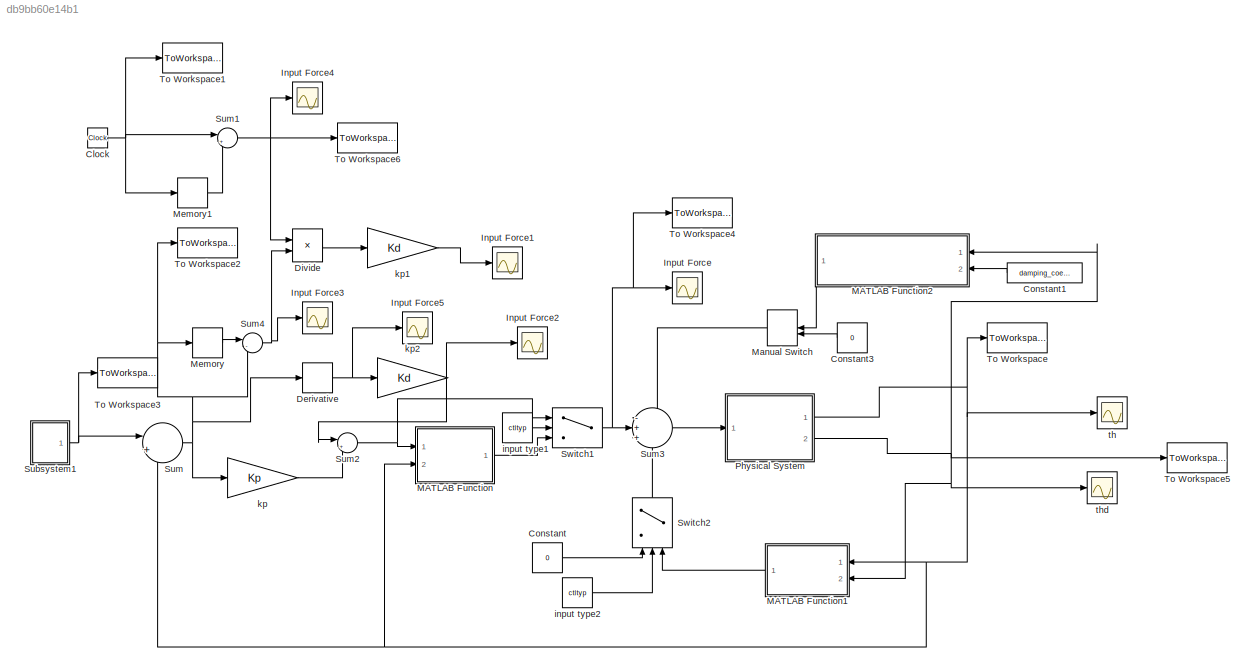
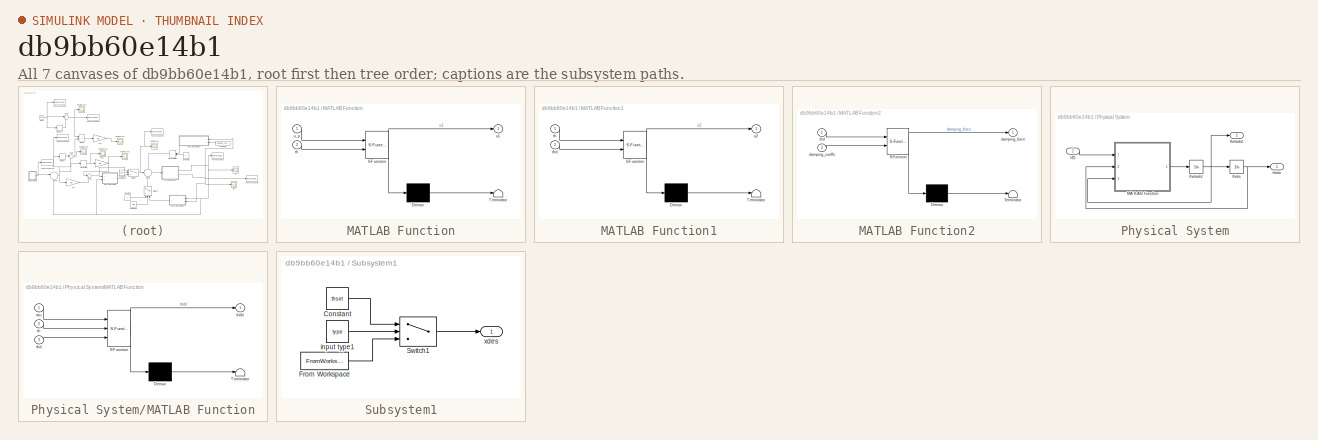
[diagram: thumbnail index - all 7 canvases of the model, root first then tree order]
MODEL slx_db9bb60e14b1
KIND model
CONFIG AbsTol = tol
CONFIG EnableMultiTasking = on
CONFIG FixedStep = maxstep
CONFIG MaxStep = maxstep
CONFIG MinStep = minstep
CONFIG RelTol = tol
CONFIG SampleTimeConstraint = Unconstrained
CONFIG Solver = FixedStepAuto
CONFIG SolverName = FixedStepAuto
CONFIG StartTime = 0.0
CONFIG StopTime = tf
BLOCK [Clock] Clock
  Decimation = 1
BLOCK [Constant] Constant
  Value = 0
BLOCK [Constant] Constant1
  Value = damping_coeffs
BLOCK [Constant] Constant3
  Value = 0
BLOCK [Derivative] Derivative
  CoefficientInTFapproximation = 0
BLOCK [Product] Divide
  InputSameDT = off
  Inputs = /*
  OutDataTypeStr = Inherit: Inherit via internal rule
  Ports = [2, 1]
  RndMeth = Floor
  SaturateOnIntegerOverflow = off
BLOCK [Scope] Input Force
  NumInputPorts = 1
  Ports = [1]
  ScopeSpecificationString = Simulink.scopes.TimeScopeBlockCfg('CurrentConfiguration', extmgr.ConfigurationSet(extmgr.Configuration('Core','General UI',true),extmgr.Configuration('Core','Source UI',true),extmgr.Configuration('Sources','WiredSimulink',true,'DataLoggingVariableName','ScopeData2','DataLoggingSaveFormat','Array','DataLoggingDecimation','1','DataLoggingDecimateData',true),extmgr.Configuration('Visuals','Time Domai...<+1716ch>
BLOCK [Scope] Input Force1
  NumInputPorts = 1
  Ports = [1]
  ScopeSpecificationString = Simulink.scopes.TimeScopeBlockCfg('CurrentConfiguration', extmgr.ConfigurationSet(extmgr.Configuration('Core','General UI',true),extmgr.Configuration('Core','Source UI',true),extmgr.Configuration('Sources','WiredSimulink',true,'DataLoggingVariableName','ScopeData1','DataLoggingSaveFormat','Array','DataLoggingDecimation','1','DataLoggingDecimateData',true),extmgr.Configuration('Visuals','Time Domai...<+1652ch>
BLOCK [Scope] Input Force2
  NumInputPorts = 1
  Ports = [1]
  ScopeSpecificationString = Simulink.scopes.TimeScopeBlockCfg('CurrentConfiguration', extmgr.ConfigurationSet(extmgr.Configuration('Core','General UI',true),extmgr.Configuration('Core','Source UI',true),extmgr.Configuration('Sources','WiredSimulink',true,'DataLoggingVariableName','ScopeData2','DataLoggingSaveFormat','Array','DataLoggingDecimation','1','DataLoggingDecimateData',true),extmgr.Configuration('Visuals','Time Domai...<+1653ch>
BLOCK [Scope] Input Force3
  NumInputPorts = 1
  Ports = [1]
  ScopeSpecificationString = Simulink.scopes.TimeScopeBlockCfg('CurrentConfiguration', extmgr.ConfigurationSet(extmgr.Configuration('Core','General UI',true),extmgr.Configuration('Core','Source UI',true),extmgr.Configuration('Sources','WiredSimulink',true,'DataLoggingVariableName','ScopeData3','DataLoggingSaveFormat','Array','DataLoggingDecimation','1','DataLoggingDecimateData',true),extmgr.Configuration('Visuals','Time Domai...<+1651ch>
BLOCK [Scope] Input Force4
  NumInputPorts = 1
  Ports = [1]
  ScopeSpecificationString = Simulink.scopes.TimeScopeBlockCfg('CurrentConfiguration', extmgr.ConfigurationSet(extmgr.Configuration('Core','General UI',true),extmgr.Configuration('Core','Source UI',true),extmgr.Configuration('Sources','WiredSimulink',true,'DataLoggingVariableName','ScopeData4','DataLoggingSaveFormat','Array','DataLoggingDecimation','1','DataLoggingDecimateData',true),extmgr.Configuration('Visuals','Time Domai...<+1655ch>
BLOCK [Scope] Input Force5
  NumInputPorts = 1
  Ports = [1]
  ScopeSpecificationString = Simulink.scopes.TimeScopeBlockCfg('CurrentConfiguration', extmgr.ConfigurationSet(extmgr.Configuration('Core','General UI',true),extmgr.Configuration('Core','Source UI',true),extmgr.Configuration('Sources','WiredSimulink',true,'DataLoggingVariableName','ScopeData1','DataLoggingSaveFormat','Array','DataLoggingDecimation','1','DataLoggingDecimateData',true),extmgr.Configuration('Visuals','Time Domai...<+1653ch>
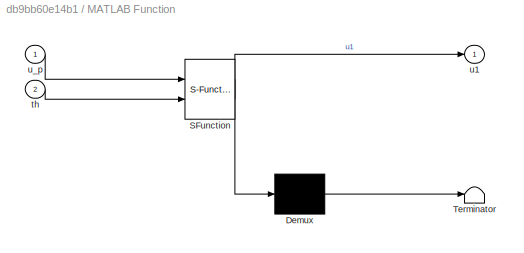
BLOCK [SubSystem] MATLAB Function
  ErrorFcn = Stateflow.Translate.translate
  PermitHierarchicalResolution = ExplicitOnly
  Ports = [2, 1]
  RequestExecContextInheritance = off
  SFBlockType = MATLAB Function
  TreatAsAtomicUnit = on
  Variant = off
BLOCK [Demux] MATLAB Function/ Demux 
  Outputs = 1
  Ports = [1, 1]
BLOCK [S-Function] MATLAB Function/ SFunction 
  EnableBusSupport = on
  FunctionName = sf_sfun
  PortCounts = [2 2]
  Ports = [2, 2]
  SFcnIsStateOwnerBlock = off
  SFunctionDeploymentMode = off
  Tag = Stateflow S-Function PD_simulink_model 1
BLOCK [Terminator] MATLAB Function/ Terminator 
BLOCK [Inport] MATLAB Function/th
  IconDisplay = Port number
  Port = 2
BLOCK [Outport] MATLAB Function/u1
  IconDisplay = Port number
BLOCK [Inport] MATLAB Function/u_p
  IconDisplay = Port number
BLOCK [SubSystem] MATLAB Function1
  ErrorFcn = Stateflow.Translate.translate
  PermitHierarchicalResolution = ExplicitOnly
  Ports = [2, 1]
  RequestExecContextInheritance = off
  SFBlockType = MATLAB Function
  TreatAsAtomicUnit = on
  Variant = off
BLOCK [Demux] MATLAB Function1/ Demux 
  Outputs = 1
  Ports = [1, 1]
BLOCK [S-Function] MATLAB Function1/ SFunction 
  EnableBusSupport = on
  FunctionName = sf_sfun
  PortCounts = [2 2]
  Ports = [2, 2]
  SFcnIsStateOwnerBlock = off
  SFunctionDeploymentMode = off
  Tag = Stateflow S-Function PD_simulink_model 3
BLOCK [Terminator] MATLAB Function1/ Terminator 
BLOCK [Inport] MATLAB Function1/th
  IconDisplay = Port number
BLOCK [Inport] MATLAB Function1/thd
  IconDisplay = Port number
  Port = 2
BLOCK [Outport] MATLAB Function1/u2
  IconDisplay = Port number
BLOCK [SubSystem] MATLAB Function2
  ErrorFcn = Stateflow.Translate.translate
  PermitHierarchicalResolution = ExplicitOnly
  Ports = [2, 1]
  RequestExecContextInheritance = off
  SFBlockType = MATLAB Function
  TreatAsAtomicUnit = on
  Variant = off
BLOCK [Demux] MATLAB Function2/ Demux 
  Outputs = 1
  Ports = [1, 1]
BLOCK [S-Function] MATLAB Function2/ SFunction 
  EnableBusSupport = on
  FunctionName = sf_sfun
  PortCounts = [2 2]
  Ports = [2, 2]
  SFcnIsStateOwnerBlock = off
  SFunctionDeploymentMode = off
  Tag = Stateflow S-Function PD_simulink_model 4
BLOCK [Terminator] MATLAB Function2/ Terminator 
BLOCK [Inport] MATLAB Function2/damping_coeffs
  IconDisplay = Port number
  Port = 2
BLOCK [Outport] MATLAB Function2/damping_force
  IconDisplay = Port number
BLOCK [Inport] MATLAB Function2/thd
  IconDisplay = Port number
BLOCK [ManualSwitch] Manual Switch
  CurrentSetting = 0
BLOCK [Memory] Memory
  X0 = thdes(1)
BLOCK [Memory] Memory1
  InheritSampleTime = on
BLOCK [SubSystem] Physical System
  Ports = [1, 2]
  RequestExecContextInheritance = off
  Variant = off
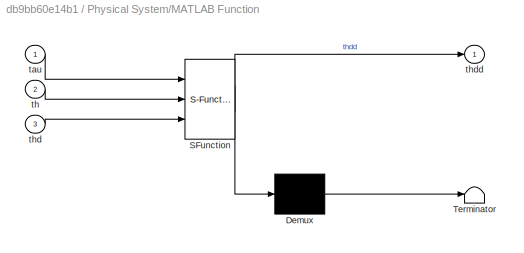
BLOCK [SubSystem] Physical System/MATLAB Function
  ErrorFcn = Stateflow.Translate.translate
  PermitHierarchicalResolution = ExplicitOnly
  Ports = [3, 1]
  RequestExecContextInheritance = off
  SFBlockType = MATLAB Function
  TreatAsAtomicUnit = on
  Variant = off
BLOCK [Demux] Physical System/MATLAB Function/ Demux 
  Outputs = 1
  Ports = [1, 1]
BLOCK [S-Function] Physical System/MATLAB Function/ SFunction 
  EnableBusSupport = on
  FunctionName = sf_sfun
  PortCounts = [3 2]
  Ports = [3, 2]
  SFcnIsStateOwnerBlock = off
  SFunctionDeploymentMode = off
  Tag = Stateflow S-Function PD_simulink_model 2
BLOCK [Terminator] Physical System/MATLAB Function/ Terminator 
BLOCK [Inport] Physical System/MATLAB Function/tau
  IconDisplay = Port number
BLOCK [Inport] Physical System/MATLAB Function/th
  IconDisplay = Port number
  Port = 2
BLOCK [Inport] Physical System/MATLAB Function/thd
  IconDisplay = Port number
  Port = 3
BLOCK [Outport] Physical System/MATLAB Function/thdd
  IconDisplay = Port number
BLOCK [Outport] Physical System/theta
  IconDisplay = Port number
BLOCK [Integrator] Physical System/theta 
  InitialCondition = theta0
  Ports = [1, 1]
BLOCK [Outport] Physical System/thetadot
  IconDisplay = Port number
  Port = 2
BLOCK [Integrator] Physical System/thetadot 
  InitialCondition = thetadot0
  Ports = [1, 1]
BLOCK [Inport] Physical System/u(t)
  IconDisplay = Port number
BLOCK [SubSystem] Subsystem1
  Ports = [0, 1]
  RequestExecContextInheritance = off
  Variant = off
BLOCK [Constant] Subsystem1/Constant
  Value = thset
BLOCK [FromWorkspace] Subsystem1/From Workspace
  OutputAfterFinalValue = Holding final value
  SampleTime = 0
  VariableName = [tin,thdes]
  ZeroCross = on
BLOCK [Switch] Subsystem1/Switch1
  Criteria = u2 ~= 0
  InputSameDT = off
  SaturateOnIntegerOverflow = off
  Threshold = 1.5
BLOCK [Constant] Subsystem1/input type1
  Value = type
BLOCK [Outport] Subsystem1/xdes
  IconDisplay = Port number
BLOCK [Sum] Sum
  IconShape = round
  InputSameDT = off
  Inputs = |+-
  OutDataTypeStr = Inherit: Inherit via internal rule
  Ports = [2, 1]
  SaturateOnIntegerOverflow = off
BLOCK [Sum] Sum1
  IconShape = round
  InputSameDT = off
  Inputs = |+-
  OutDataTypeStr = Inherit: Inherit via internal rule
  Ports = [2, 1]
  SaturateOnIntegerOverflow = off
BLOCK [Sum] Sum2
  IconShape = round
  InputSameDT = off
  Inputs = |++
  OutDataTypeStr = Inherit: Inherit via internal rule
  Ports = [2, 1]
  SaturateOnIntegerOverflow = off
BLOCK [Sum] Sum3
  IconShape = round
  InputSameDT = off
  Inputs = -++
  OutDataTypeStr = Inherit: Inherit via internal rule
  Ports = [3, 1]
  SaturateOnIntegerOverflow = off
BLOCK [Sum] Sum4
  IconShape = round
  InputSameDT = off
  Inputs = |-+
  OutDataTypeStr = Inherit: Inherit via internal rule
  Ports = [2, 1]
  SaturateOnIntegerOverflow = off
BLOCK [Switch] Switch1
  Criteria = u2 ~= 0
  InputSameDT = off
  SaturateOnIntegerOverflow = off
  Threshold = 1.5
BLOCK [Switch] Switch2
  Criteria = u2 ~= 0
  InputSameDT = off
  SaturateOnIntegerOverflow = off
  Threshold = 1.5
BLOCK [ToWorkspace] To Workspace
  FixptAsFi = on
  MaxDataPoints = inf
  Ports = [1]
  SampleTime = -1
  Save2DSignal = 3-D array (concatenate along third dimension)
  VariableName = theta
BLOCK [ToWorkspace] To Workspace1
  FixptAsFi = on
  MaxDataPoints = inf
  Ports = [1]
  SampleTime = -1
  Save2DSignal = 3-D array (concatenate along third dimension)
  VariableName = t
BLOCK [ToWorkspace] To Workspace2
  FixptAsFi = on
  MaxDataPoints = inf
  Ports = [1]
  SampleTime = -1
  Save2DSignal = 3-D array (concatenate along third dimension)
  VariableName = error
BLOCK [ToWorkspace] To Workspace3
  FixptAsFi = on
  MaxDataPoints = inf
  Ports = [1]
  SampleTime = -1
  Save2DSignal = 3-D array (concatenate along third dimension)
  VariableName = reference
BLOCK [ToWorkspace] To Workspace4
  FixptAsFi = on
  MaxDataPoints = inf
  Ports = [1]
  SampleTime = -1
  Save2DSignal = 3-D array (concatenate along third dimension)
  VariableName = input
BLOCK [ToWorkspace] To Workspace5
  FixptAsFi = on
  MaxDataPoints = inf
  Ports = [1]
  SampleTime = -1
  Save2DSignal = 3-D array (concatenate along third dimension)
  VariableName = thetadot
BLOCK [ToWorkspace] To Workspace6
  FixptAsFi = on
  MaxDataPoints = inf
  Ports = [1]
  SampleTime = -1
  Save2DSignal = 3-D array (concatenate along third dimension)
  VariableName = error_dot
BLOCK [Constant] input type1
  Value = ctltyp
BLOCK [Constant] input type2
  Value = ctltyp
BLOCK [Gain] kp
  Gain = Kp
  Multiplication = Matrix(K*u) (u vector)
  OutDataTypeStr = Inherit: Inherit via internal rule
  ParamDataTypeStr = Inherit: Inherit via internal rule
  SaturateOnIntegerOverflow = off
BLOCK [Gain] kp1
  Gain = Kd
  Multiplication = Matrix(K*u) (u vector)
  OutDataTypeStr = Inherit: Inherit via internal rule
  ParamDataTypeStr = Inherit: Inherit via internal rule
  SaturateOnIntegerOverflow = off
BLOCK [Gain] kp2
  Gain = Kd
  Multiplication = Matrix(K*u) (u vector)
  OutDataTypeStr = Inherit: Inherit via internal rule
  ParamDataTypeStr = Inherit: Inherit via internal rule
  SaturateOnIntegerOverflow = off
BLOCK [Scope] th
  NumInputPorts = 1
  Ports = [1]
  ScopeSpecificationString = Simulink.scopes.TimeScopeBlockCfg('CurrentConfiguration', extmgr.ConfigurationSet(extmgr.Configuration('Core','General UI',true),extmgr.Configuration('Core','Source UI',true),extmgr.Configuration('Sources','WiredSimulink',true,'DataLoggingSaveFormat','Array','DataLoggingDecimation','1','DataLoggingDecimateData',true),extmgr.Configuration('Visuals','Time Domain',true,'SerializedDisplays',{struct('M...<+1605ch>
BLOCK [Scope] thd
  NumInputPorts = 1
  Ports = [1]
  ScopeSpecificationString = Simulink.scopes.TimeScopeBlockCfg('CurrentConfiguration', extmgr.ConfigurationSet(extmgr.Configuration('Core','General UI',true),extmgr.Configuration('Core','Source UI',true),extmgr.Configuration('Sources','WiredSimulink',true,'DataLoggingVariableName','ScopeData1','DataLoggingSaveFormat','Array','DataLoggingDecimation','1','DataLoggingDecimateData',true),extmgr.Configuration('Visuals','Time Domai...<+1644ch>
NET Clock:1 -> Memory1:1, Sum1:1, To Workspace1:1
LINE Constant1:1 -> MATLAB Function2:2
LINE Constant3:1 -> Manual Switch:2
LINE Constant:1 -> Switch2:1
NET Derivative:1 -> Input Force5:1, kp2:1
LINE Divide:1 -> kp1:1
LINE MATLAB Function1:1 -> Switch2:3
LINE MATLAB Function2:1 -> Manual Switch:1
LINE MATLAB Function:1 -> Switch1:3
LINE Manual Switch:1 -> Sum3:1
LINE Memory1:1 -> Sum1:2
LINE Memory:1 -> Sum4:1
LINE Physical System/MATLAB Function:1 -> Physical System/thetadot :1
NET Physical System/theta :1 -> Physical System/MATLAB Function:2, Physical System/theta:1
NET Physical System/thetadot :1 -> Physical System/MATLAB Function:3, Physical System/theta :1, Physical System/thetadot:1
LINE Physical System/u(t):1 -> Physical System/MATLAB Function:1
NET Physical System:1 -> MATLAB Function1:1, MATLAB Function:2, Sum:2, To Workspace:1, th:1
NET Physical System:2 -> MATLAB Function1:2, MATLAB Function2:1, To Workspace5:1, thd:1
LINE Subsystem1/Constant:1 -> Subsystem1/Switch1:1
LINE Subsystem1/From Workspace:1 -> Subsystem1/Switch1:3
LINE Subsystem1/Switch1:1 -> Subsystem1/xdes:1
LINE Subsystem1/input type1:1 -> Subsystem1/Switch1:2
NET Subsystem1:1 -> Sum:1, To Workspace3:1
NET Sum1:1 -> Divide:1, Input Force4:1, To Workspace6:1
NET Sum2:1 -> MATLAB Function:1, Switch1:1
LINE Sum3:1 -> Physical System:1
NET Sum4:1 -> Divide:2, Input Force3:1
NET Sum:1 -> Derivative:1, Memory:1, Sum4:2, To Workspace2:1, kp:1
NET Switch1:1 -> Input Force:1, Sum3:2, To Workspace4:1
LINE Switch2:1 -> Sum3:3
LINE input type1:1 -> Switch1:2
LINE input type2:1 -> Switch2:2
LINE kp1:1 -> Input Force1:1
NET kp2:1 -> Input Force2:1, Sum2:1
LINE kp:1 -> Sum2:2
note: NET lines group one-source signal fan-out (src -> all destinations, sorted); 1:1 wires keep LINE
CHART MATLAB Function states=1 transitions=1
  STATE_LABEL 'eML_blk_kernel()'
  STATE_LABEL 'SCRIPT:\nfunction u1  = fcn(u_p,th)\n\nMhat = M_func(th(1));\n\n% Mhat = eye(2);\n\n u1 = Mhat*u_p;'
CHART Physical System/MATLAB Function states=1 transitions=1
  STATE_LABEL 'eML_blk_kernel()'
  STATE_LABEL 'SCRIPT:\nfunction thdd  = fcn(tau,th,thd)\n\nM = M_func(th(1),th(2));\nG = G_func(th(1),th(2));\nC = C_func(th(1),th(2));\nB = B_func(th(1),th(2));\n\nthdd = M\\( tau - C*(thd.^2) - B*thdthdfunc(thd) - G);'
CHART MATLAB Function1 states=1 transitions=1
  STATE_LABEL 'eML_blk_kernel()'
  STATE_LABEL 'SCRIPT:\nfunction u2 = fcn(th,thd)\n\nG = G_func(th(1));\nC = C_func(th(1));\nB = B_func(th(1));\n\nu2 = C*thd.^2 + B*thdthdfunc(thd) + G;'
CHART MATLAB Function2 states=1 transitions=1
  STATE_LABEL 'eML_blk_kernel()'
  STATE_LABEL 'SCRIPT:\nfunction damping_force = fcn(thd,damping_coeffs)\ndamping_force = damping_coeffs*thd;\n\n'
